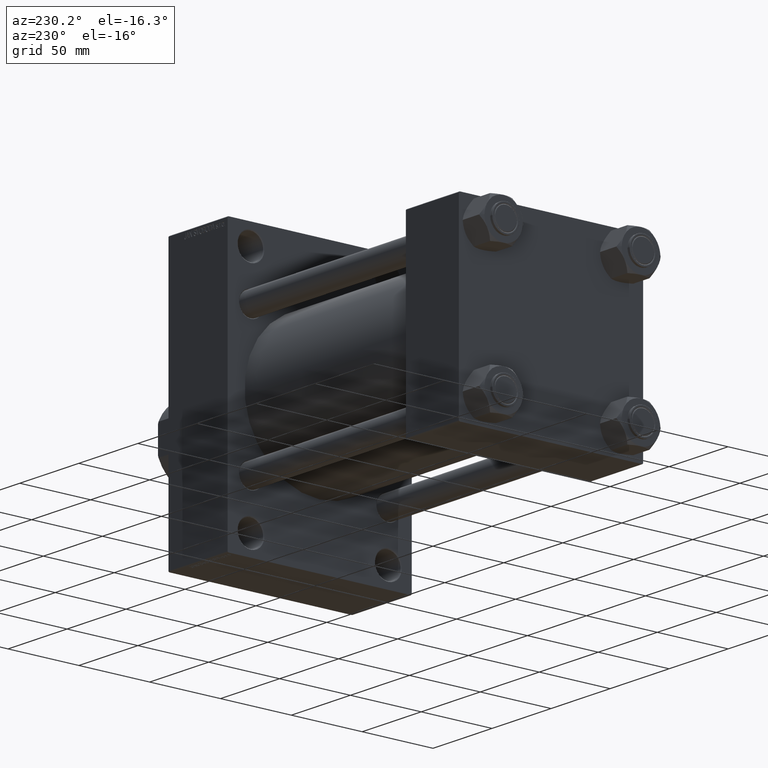
[diagram: clean part render]
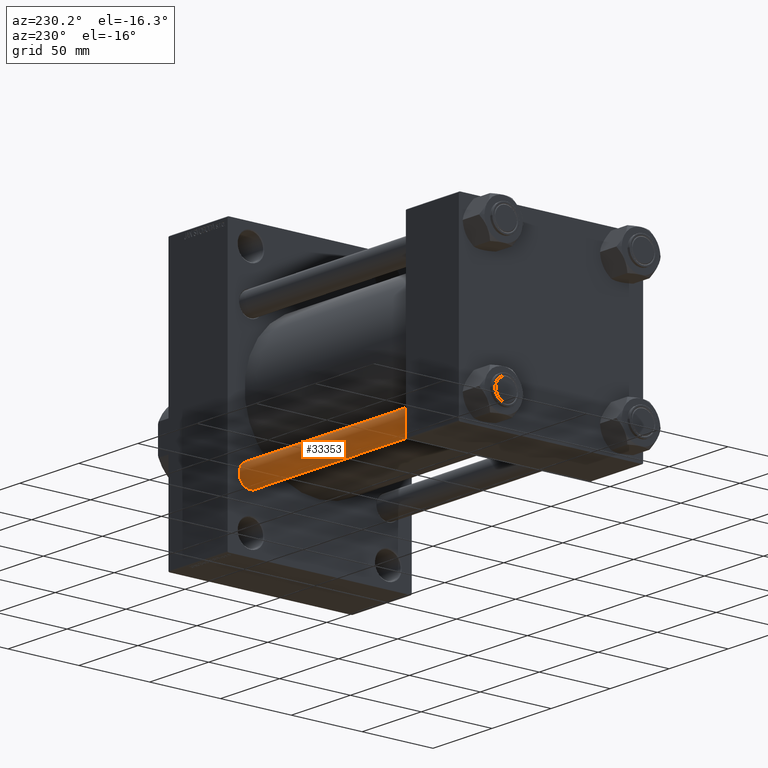
[diagram: same view with one face highlighted and labeled with its STEP entity id]
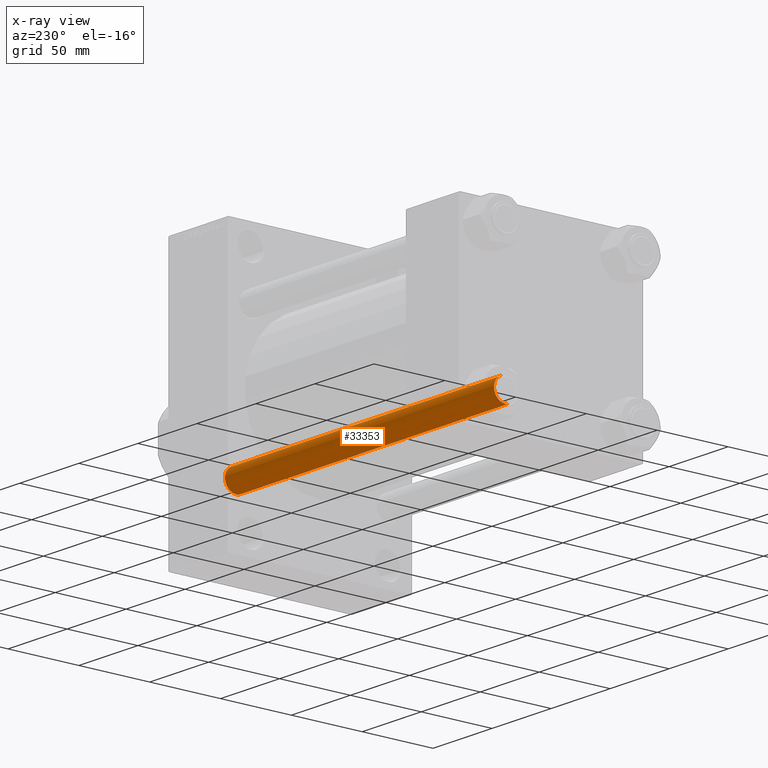
[diagram: x-ray of the same camera — body ghosted, the highlighted face saturated]
A machine part, auxiliary view. The second image highlights one B-rep face of the part: STEP entity #33353.
The next image is the same camera in x-ray: the body ghosted, the highlighted face saturated — about 0% of this face is hidden behind the body in this view.
In plain terms, the highlighted cylindrical surface (edge-blend (fillet) strip) has radius 8 mm, axis along (1, -0, 0).
Its self-contained STEP definition (entity closure, byte-faithful):
#1000 = AXIS2_PLACEMENT_3D ( 'NONE', #30224, #37499, #45464 ) ;
#2865 = DIRECTION ( 'NONE',  ( 1.000000000000000000, 0.000000000000000000, 0.000000000000000000 ) ) ;
#4056 = EDGE_CURVE ( 'NONE', #24947, #16238, #44914, .T. ) ;
#7001 = AXIS2_PLACEMENT_3D ( 'NONE', #32236, #14495, #2865 ) ;
#8079 = ORIENTED_EDGE ( 'NONE', *, *, #9563, .T. ) ;
#8140 = FACE_OUTER_BOUND ( 'NONE', #14881, .T. ) ;
#9472 = ORIENTED_EDGE ( 'NONE', *, *, #4056, .T. ) ;
#9563 = EDGE_CURVE ( 'NONE', #17403, #15730, #14260, .T. ) ;
#9925 = EDGE_CURVE ( 'NONE', #16238, #17403, #37789, .T. ) ;
#12074 = CARTESIAN_POINT ( 'NONE',  ( 8.000000000000000000, 9.797174393178823685E-16, 229.0000000000000000 ) ) ;
#12621 = CARTESIAN_POINT ( 'NONE',  ( 0.000000000000000000, 0.000000000000000000, 0.5000000000001392220 ) ) ;
#13023 = ORIENTED_EDGE ( 'NONE', *, *, #36542, .F. ) ;
#13460 = AXIS2_PLACEMENT_3D ( 'NONE', #12621, #45088, #27419 ) ;
#14260 = CIRCLE ( 'NONE', #13460, 8.000000000000000000 ) ;
#14495 = DIRECTION ( 'NONE',  ( 0.000000000000000000, 0.000000000000000000, -1.000000000000000000 ) ) ;
#14881 = EDGE_LOOP ( 'NONE', ( #9472, #33724, #8079, #13023 ) ) ;
#15730 = VERTEX_POINT ( 'NONE', #27990 ) ;
#16238 = VERTEX_POINT ( 'NONE', #26430 ) ;
#16611 = VECTOR ( 'NONE', #22517, 1000.000000000000000 ) ;
#17403 = VERTEX_POINT ( 'NONE', #38267 ) ;
#22517 = DIRECTION ( 'NONE',  ( -0.000000000000000000, -0.000000000000000000, -1.000000000000000000 ) ) ;
#24947 = VERTEX_POINT ( 'NONE', #39588 ) ;
#26430 = CARTESIAN_POINT ( 'NONE',  ( 8.000000000000000000, 9.797174393178823685E-16, 228.5000000000000853 ) ) ;
#27419 = DIRECTION ( 'NONE',  ( 1.000000000000000000, 0.000000000000000000, 0.000000000000000000 ) ) ;
#27990 = CARTESIAN_POINT ( 'NONE',  ( -8.000000000000000000, 0.000000000000000000, 0.5000000000001392220 ) ) ;
#30151 = LINE ( 'NONE', #37422, #39051 ) ;
#30224 = CARTESIAN_POINT ( 'NONE',  ( 0.000000000000000000, 0.000000000000000000, 229.0000000000000000 ) ) ;
#32236 = CARTESIAN_POINT ( 'NONE',  ( 0.000000000000000000, 0.000000000000000000, 228.5000000000000853 ) ) ;
#33353 = ADVANCED_FACE ( 'NONE', ( #8140 ), #34338, .T. ) ;
#33724 = ORIENTED_EDGE ( 'NONE', *, *, #9925, .T. ) ;
#34260 = DIRECTION ( 'NONE',  ( -0.000000000000000000, -0.000000000000000000, -1.000000000000000000 ) ) ;
#34338 = CYLINDRICAL_SURFACE ( 'NONE', #1000, 8.000000000000000000 ) ;
#36542 = EDGE_CURVE ( 'NONE', #24947, #15730, #30151, .T. ) ;
#37422 = CARTESIAN_POINT ( 'NONE',  ( -8.000000000000000000, 0.000000000000000000, 229.0000000000000000 ) ) ;
#37499 = DIRECTION ( 'NONE',  ( -0.000000000000000000, -0.000000000000000000, -1.000000000000000000 ) ) ;
#37789 = LINE ( 'NONE', #12074, #16611 ) ;
#38267 = CARTESIAN_POINT ( 'NONE',  ( 8.000000000000000000, 9.797174393178823685E-16, 0.5000000000001392220 ) ) ;
#39051 = VECTOR ( 'NONE', #34260, 1000.000000000000000 ) ;
#39588 = CARTESIAN_POINT ( 'NONE',  ( -8.000000000000000000, 0.000000000000000000, 228.5000000000000853 ) ) ;
#44914 = CIRCLE ( 'NONE', #7001, 8.000000000000000000 ) ;
#45088 = DIRECTION ( 'NONE',  ( -0.000000000000000000, -0.000000000000000000, 1.000000000000000000 ) ) ;
#45464 = DIRECTION ( 'NONE',  ( -1.000000000000000000, 0.000000000000000000, 0.000000000000000000 ) ) ;